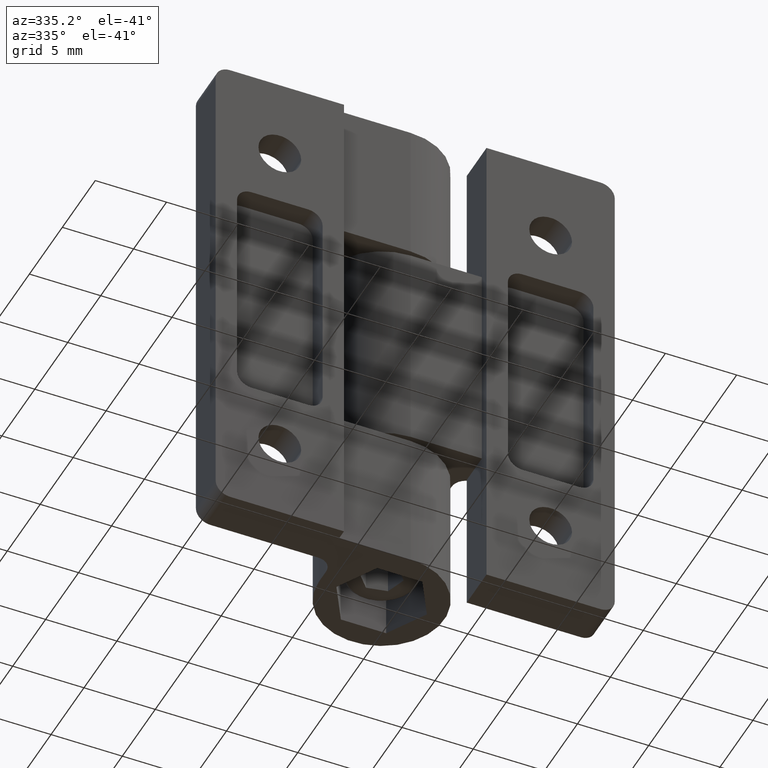
[diagram: clean part render]
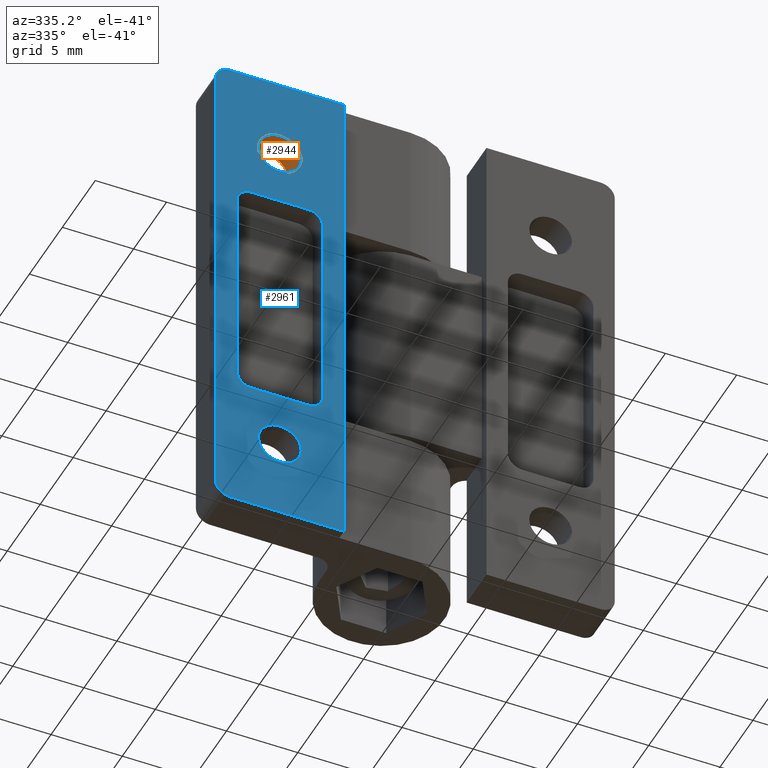
[diagram: same view with the hole feature highlighted: cylindrical wall and planar end face, labeled with their STEP entity ids]
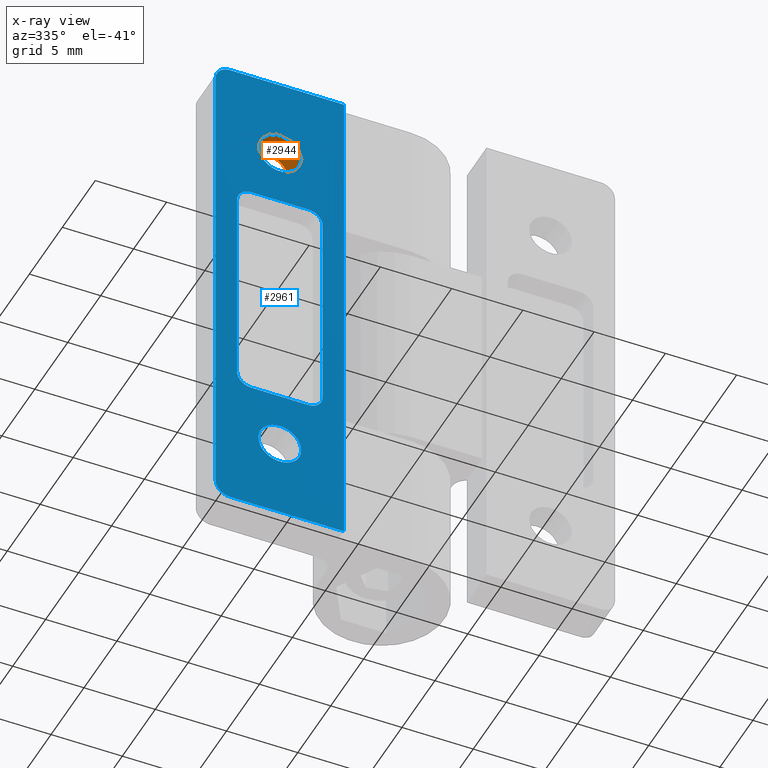
[diagram: x-ray of the same camera — body ghosted, the hole faces saturated]
A machine part, auxiliary view. The highlighted faces form one hole feature of diameter 3 mm: the cylindrical wall (entity #2944, orange) and its adjacent planar end face (entity #2961, blue) — they share a circular edge in the B-rep.
The next image is the same camera in x-ray (body ghosted, the hole faces saturated) — the bore reads through the body.
Wall:
#312=FACE_BOUND('',#561,.T.);
#440=FACE_OUTER_BOUND('',#560,.T.);
#560=EDGE_LOOP('',(#2058));
#561=EDGE_LOOP('',(#2059));
#1011=CIRCLE('',#3087,1.5);
#1012=CIRCLE('',#3090,1.5);
#1111=VERTEX_POINT('',#3905);
#1112=VERTEX_POINT('',#3909);
#1531=EDGE_CURVE('',#1111,#1111,#1011,.T.);
#1532=EDGE_CURVE('',#1112,#1112,#1012,.T.);
#2058=ORIENTED_EDGE('',*,*,#1532,.F.);
#2059=ORIENTED_EDGE('',*,*,#1531,.F.);
#2894=CYLINDRICAL_SURFACE('',#3089,1.5);
#2944=ADVANCED_FACE('',(#440,#312),#2894,.F.);
#3087=AXIS2_PLACEMENT_3D('',#3906,#3381,#3382);
#3089=AXIS2_PLACEMENT_3D('',#3908,#3385,#3386);
#3090=AXIS2_PLACEMENT_3D('',#3910,#3387,#3388);
#3381=DIRECTION('center_axis',(5.78241158658936E-17,0.,-1.));
#3382=DIRECTION('ref_axis',(1.,0.,5.78241158658936E-17));
#3385=DIRECTION('center_axis',(5.78241158658936E-17,0.,-1.));
#3386=DIRECTION('ref_axis',(1.,0.,5.78241158658936E-17));
#3387=DIRECTION('center_axis',(1.71193772834421E-33,0.,1.));
#3388=DIRECTION('ref_axis',(1.,0.,-1.71193772834421E-33));
#3905=CARTESIAN_POINT('',(3.,-12.25,2.));
#3906=CARTESIAN_POINT('Origin',(4.5,-12.25,2.));
#3908=CARTESIAN_POINT('Origin',(4.5,-12.25,-2.5));
#3909=CARTESIAN_POINT('',(3.,-12.25,-3.64291929955129E-16));
#3910=CARTESIAN_POINT('Origin',(4.5,-12.25,-2.77555756156289E-16));
End face:
#317=FACE_BOUND('',#583,.T.);
#318=FACE_BOUND('',#584,.T.);
#319=FACE_BOUND('',#585,.T.);
#373=PLANE('',#3108);
#457=FACE_OUTER_BOUND('',#582,.T.);
#582=EDGE_LOOP('',(#2138,#2139,#2140,#2141,#2142,#2143));
#583=EDGE_LOOP('',(#2144,#2145,#2146,#2147,#2148,#2149,#2150,#2151));
#584=EDGE_LOOP('',(#2152));
#585=EDGE_LOOP('',(#2153));
#680=LINE('',#3773,#836);
#702=LINE('',#3837,#858);
#706=LINE('',#3853,#862);
#712=LINE('',#3868,#868);
#716=LINE('',#3880,#872);
#719=LINE('',#3889,#875);
#749=LINE('',#3975,#905);
#757=LINE('',#3991,#913);
#836=VECTOR('',#3241,34.);
#858=VECTOR('',#3305,36.);
#862=VECTOR('',#3321,14.5);
#868=VECTOR('',#3335,4.);
#872=VECTOR('',#3347,14.5);
#875=VECTOR('',#3358,4.);
#905=VECTOR('',#3444,8.);
#913=VECTOR('',#3462,8.);
#983=CIRCLE('',#3031,1.);
#987=CIRCLE('',#3038,1.);
#999=CIRCLE('',#3062,1.);
#1001=CIRCLE('',#3066,1.);
#1003=CIRCLE('',#3070,1.);
#1005=CIRCLE('',#3074,1.);
#1009=CIRCLE('',#3084,1.5);
#1012=CIRCLE('',#3090,1.5);
#1056=VERTEX_POINT('',#3744);
#1057=VERTEX_POINT('',#3746);
#1068=VERTEX_POINT('',#3772);
#1069=VERTEX_POINT('',#3776);
#1088=VERTEX_POINT('',#3834);
#1089=VERTEX_POINT('',#3836);
#1093=VERTEX_POINT('',#3846);
#1094=VERTEX_POINT('',#3848);
#1095=VERTEX_POINT('',#3852);
#1099=VERTEX_POINT('',#3861);
#1100=VERTEX_POINT('',#3863);
#1103=VERTEX_POINT('',#3873);
#1104=VERTEX_POINT('',#3875);
#1106=VERTEX_POINT('',#3884);
#1109=VERTEX_POINT('',#3900);
#1112=VERTEX_POINT('',#3909);
#1454=EDGE_CURVE('',#1056,#1057,#983,.T.);
#1467=EDGE_CURVE('',#1068,#1057,#680,.T.);
#1469=EDGE_CURVE('',#1068,#1069,#987,.T.);
#1499=EDGE_CURVE('',#1088,#1089,#702,.T.);
#1504=EDGE_CURVE('',#1093,#1094,#999,.T.);
#1506=EDGE_CURVE('',#1095,#1094,#706,.T.);
#1511=EDGE_CURVE('',#1099,#1100,#1001,.T.);
#1514=EDGE_CURVE('',#1093,#1100,#712,.T.);
#1517=EDGE_CURVE('',#1103,#1104,#1003,.T.);
#1520=EDGE_CURVE('',#1099,#1104,#716,.T.);
#1522=EDGE_CURVE('',#1095,#1106,#1005,.T.);
#1525=EDGE_CURVE('',#1103,#1106,#719,.T.);
#1529=EDGE_CURVE('',#1109,#1109,#1009,.T.);
#1532=EDGE_CURVE('',#1112,#1112,#1012,.T.);
#1563=EDGE_CURVE('',#1069,#1088,#749,.T.);
#1571=EDGE_CURVE('',#1089,#1056,#757,.T.);
#2138=ORIENTED_EDGE('',*,*,#1454,.F.);
#2139=ORIENTED_EDGE('',*,*,#1571,.F.);
#2140=ORIENTED_EDGE('',*,*,#1499,.F.);
#2141=ORIENTED_EDGE('',*,*,#1563,.F.);
#2142=ORIENTED_EDGE('',*,*,#1469,.F.);
#2143=ORIENTED_EDGE('',*,*,#1467,.T.);
#2144=ORIENTED_EDGE('',*,*,#1506,.T.);
#2145=ORIENTED_EDGE('',*,*,#1504,.F.);
#2146=ORIENTED_EDGE('',*,*,#1514,.T.);
#2147=ORIENTED_EDGE('',*,*,#1511,.F.);
#2148=ORIENTED_EDGE('',*,*,#1520,.T.);
#2149=ORIENTED_EDGE('',*,*,#1517,.F.);
#2150=ORIENTED_EDGE('',*,*,#1525,.T.);
#2151=ORIENTED_EDGE('',*,*,#1522,.F.);
#2152=ORIENTED_EDGE('',*,*,#1529,.T.);
#2153=ORIENTED_EDGE('',*,*,#1532,.T.);
#2961=ADVANCED_FACE('',(#457,#317,#318,#319),#373,.T.);
#3031=AXIS2_PLACEMENT_3D('',#3747,#3220,#3221);
#3038=AXIS2_PLACEMENT_3D('',#3777,#3245,#3246);
#3062=AXIS2_PLACEMENT_3D('',#3849,#3316,#3317);
#3066=AXIS2_PLACEMENT_3D('',#3864,#3329,#3330);
#3070=AXIS2_PLACEMENT_3D('',#3876,#3341,#3342);
#3074=AXIS2_PLACEMENT_3D('',#3885,#3352,#3353);
#3084=AXIS2_PLACEMENT_3D('',#3901,#3375,#3376);
#3090=AXIS2_PLACEMENT_3D('',#3910,#3387,#3388);
#3108=AXIS2_PLACEMENT_3D('',#3990,#3460,#3461);
#3220=DIRECTION('center_axis',(1.71193772834421E-33,0.,1.));
#3221=DIRECTION('ref_axis',(-0.707106781186547,0.707106781186548,1.21052277668128E-33));
#3241=DIRECTION('',(0.,1.,0.));
#3245=DIRECTION('center_axis',(1.71193772834421E-33,0.,1.));
#3246=DIRECTION('ref_axis',(-0.707106781186547,-0.707106781186548,1.21052277668128E-33));
#3305=DIRECTION('',(0.,1.,0.));
#3316=DIRECTION('center_axis',(-1.71193772834421E-33,0.,-1.));
#3317=DIRECTION('ref_axis',(0.707106781186547,0.707106781186548,-1.21052277668128E-33));
#3321=DIRECTION('',(0.,1.,0.));
#3329=DIRECTION('center_axis',(-1.71193772834421E-33,0.,-1.));
#3330=DIRECTION('ref_axis',(-0.707106781186547,0.707106781186548,1.21052277668128E-33));
#3335=DIRECTION('',(-1.,3.70074341541719E-16,1.71193772834421E-33));
#3341=DIRECTION('center_axis',(-1.71193772834421E-33,0.,-1.));
#3342=DIRECTION('ref_axis',(-0.707106781186547,-0.707106781186548,1.21052277668128E-33));
#3347=DIRECTION('',(0.,-1.,0.));
#3352=DIRECTION('center_axis',(-1.71193772834421E-33,0.,-1.));
#3353=DIRECTION('ref_axis',(0.707106781186547,-0.707106781186548,-1.21052277668128E-33));
#3358=DIRECTION('',(1.,0.,-1.71193772834421E-33));
#3375=DIRECTION('center_axis',(1.71193772834421E-33,0.,1.));
#3376=DIRECTION('ref_axis',(1.,0.,-1.71193772834421E-33));
#3387=DIRECTION('center_axis',(1.71193772834421E-33,0.,1.));
#3388=DIRECTION('ref_axis',(1.,0.,-1.71193772834421E-33));
#3444=DIRECTION('',(1.,0.,-1.71193772834421E-33));
#3460=DIRECTION('center_axis',(-1.71193772834421E-33,0.,-1.));
#3461=DIRECTION('ref_axis',(-1.,0.,1.71193772834421E-33));
#3462=DIRECTION('',(-1.,0.,1.71193772834421E-33));
#3744=CARTESIAN_POINT('',(1.,18.,-1.71193772834421E-33));
#3746=CARTESIAN_POINT('',(0.,17.,0.));
#3747=CARTESIAN_POINT('Origin',(1.,17.,5.55111512312578E-16));
#3772=CARTESIAN_POINT('',(0.,-17.,0.));
#3773=CARTESIAN_POINT('',(0.,0.,0.));
#3776=CARTESIAN_POINT('',(1.,-18.,-1.71193772834421E-33));
#3777=CARTESIAN_POINT('Origin',(1.,-17.,5.55111512312578E-16));
#3834=CARTESIAN_POINT('',(9.,-18.,0.));
#3836=CARTESIAN_POINT('',(9.,18.,0.));
#3837=CARTESIAN_POINT('',(9.,0.,-1.54074395550979E-32));
#3846=CARTESIAN_POINT('',(6.5,8.25,-1.11275952342374E-32));
#3848=CARTESIAN_POINT('',(7.5,7.25,-1.28395329625816E-32));
#3849=CARTESIAN_POINT('Origin',(6.5,7.25,-1.54074395550979E-32));
#3852=CARTESIAN_POINT('',(7.5,-7.25,-1.28395329625816E-32));
#3853=CARTESIAN_POINT('',(7.5,-4.125,-1.28395329625816E-32));
#3861=CARTESIAN_POINT('',(1.5,7.25,-2.56790659251631E-33));
#3863=CARTESIAN_POINT('',(2.5,8.25,-4.27984432086053E-33));
#3864=CARTESIAN_POINT('Origin',(2.5,7.25,-1.54074395550979E-32));
#3868=CARTESIAN_POINT('',(8.25,8.25,-1.41234862588397E-32));
#3873=CARTESIAN_POINT('',(2.5,-8.25,-4.27984432086052E-33));
#3875=CARTESIAN_POINT('',(1.5,-7.25,-2.56790659251631E-33));
#3876=CARTESIAN_POINT('Origin',(2.5,-7.25,-1.54074395550979E-32));
#3880=CARTESIAN_POINT('',(1.5,4.125,-2.56790659251631E-33));
#3884=CARTESIAN_POINT('',(6.5,-8.25,-1.11275952342374E-32));
#3885=CARTESIAN_POINT('Origin',(6.5,-7.25,-1.54074395550979E-32));
#3889=CARTESIAN_POINT('',(5.25,-8.25,-8.9876730738071E-33));
#3900=CARTESIAN_POINT('',(3.,12.25,-3.64291929955129E-16));
#3901=CARTESIAN_POINT('Origin',(4.5,12.25,-2.77555756156289E-16));
#3909=CARTESIAN_POINT('',(3.,-12.25,-3.64291929955129E-16));
#3910=CARTESIAN_POINT('Origin',(4.5,-12.25,-2.77555756156289E-16));
#3975=CARTESIAN_POINT('',(0.,-18.,0.));
#3990=CARTESIAN_POINT('Origin',(9.,0.,-1.54074395550979E-32));
#3991=CARTESIAN_POINT('',(0.,18.,0.));